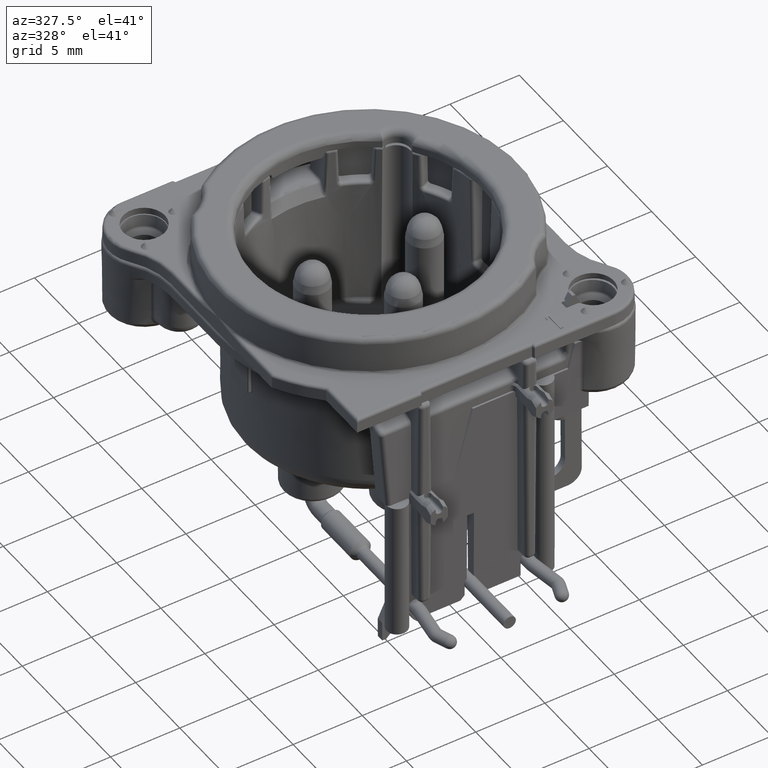
[diagram: clean part render]
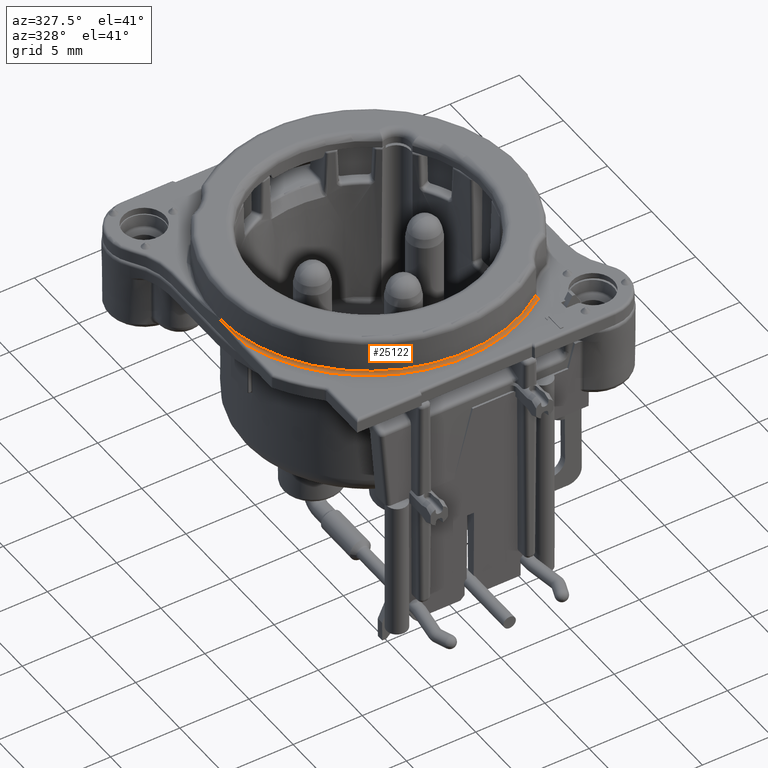
[diagram: same view with one face highlighted and labeled with its STEP entity id]
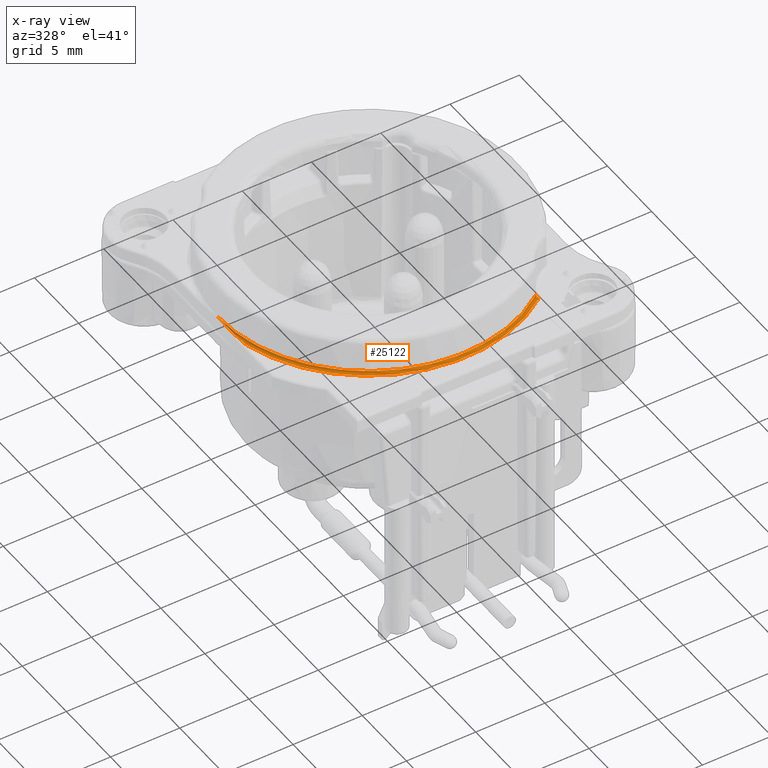
[diagram: x-ray of the same camera — body ghosted, the highlighted face saturated]
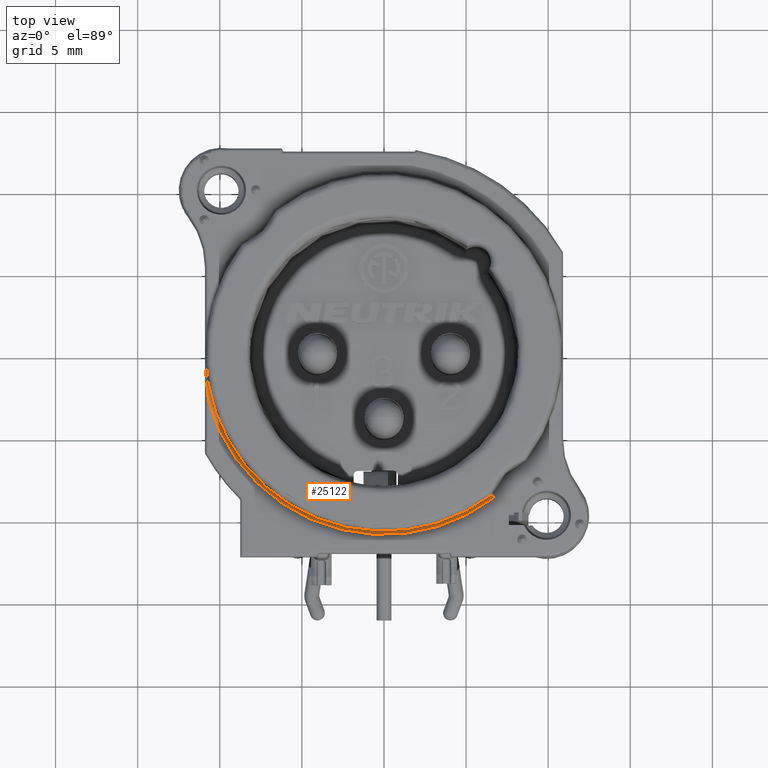
[diagram: same view with one face highlighted and labeled with its STEP entity id]
A machine part, auxiliary view. The second image highlights one B-rep face of the part: STEP entity #25122.
The next image is the same camera in x-ray: the body ghosted, the highlighted face saturated — about 0% of this face is hidden behind the body in this view.
A second angle (top view) of the same face is appended — the face is thin or edge-on in the first view.
In plain terms, the highlighted toroidal blend (fillet) surface has major radius 11.0791 mm and minor (blend) radius 0.2 mm.
Its self-contained STEP definition (entity closure, byte-faithful):
#642=CARTESIAN_POINT('',(-1.068600548245E1,-2.924961140162E0,1.000000064700E0));
#643=CARTESIAN_POINT('',(-1.070233624940E1,-2.801190992725E0,
9.999998862737E-1));
#644=CARTESIAN_POINT('',(-1.073310871526E1,-2.553092128592E0,1.004177684084E0));
#645=CARTESIAN_POINT('',(-1.077420340856E1,-2.169683374487E0,1.020089858522E0));
#646=CARTESIAN_POINT('',(-1.080713870382E1,-1.804063017955E0,1.041832045668E0));
#647=CARTESIAN_POINT('',(-1.083250550299E1,-1.460660750904E0,1.066516713758E0));
#648=CARTESIAN_POINT('',(-1.085063864596E1,-1.151973236574E0,1.091385279577E0));
#649=CARTESIAN_POINT('',(-1.086315445871E1,-8.755764462619E-1,
1.115244687645E0));
#650=CARTESIAN_POINT('',(-1.087140040298E1,-6.264912570035E-1,
1.137700829615E0));
#651=CARTESIAN_POINT('',(-1.087639016812E1,-4.002601785251E-1,
1.158693568547E0));
#652=CARTESIAN_POINT('',(-1.087888032E1,-1.926449113802E-1,1.178144091153E0));
#653=CARTESIAN_POINT('',(-1.087921741755E1,-6.268191075455E-2,
1.190726286617E0));
#654=CARTESIAN_POINT('',(-1.087911237371E1,2.418568043053E-4,1.196648975651E0));
#656=CARTESIAN_POINT('',(0.E0,0.E0,1.196509518713E0));
#657=DIRECTION('',(0.E0,0.E0,1.E0));
#658=DIRECTION('',(-9.999999996466E-1,2.658511813350E-5,0.E0));
#659=AXIS2_PLACEMENT_3D('',#656,#657,#658);
#914=CARTESIAN_POINT('',(0.E0,0.E0,1.E0));
#915=DIRECTION('',(0.E0,0.E0,1.E0));
#916=DIRECTION('',(-9.645206330468E-1,-2.640074779754E-1,0.E0));
#917=AXIS2_PLACEMENT_3D('',#914,#915,#916);
#919=CARTESIAN_POINT('',(6.688599776629E0,-8.832255878179E0,1.000000538344E0));
#14934=CARTESIAN_POINT('',(6.567890363177E0,-8.672828318435E0,
1.196509514306E0));
#14945=CARTESIAN_POINT('',(6.688598665851E0,-8.832254409328E0,1.2E0));
#14946=DIRECTION('',(7.972010756206E-1,6.037138767905E-1,0.E0));
#14947=DIRECTION('',(5.558897293975E-6,-7.340495344038E-6,-9.999999999576E-1));
#14948=AXIS2_PLACEMENT_3D('',#14945,#14946,#14947);
#23335=VERTEX_POINT('',#919);
#23336=VERTEX_POINT('',#14934);
#23355=VERTEX_POINT('',#642);
#23356=VERTEX_POINT('',#654);
#25108=CARTESIAN_POINT('',(0.E0,0.E0,1.2E0));
#25109=DIRECTION('',(0.E0,0.E0,-1.E0));
#25110=DIRECTION('',(-7.077664394356E-1,7.064465069690E-1,0.E0));
#25111=AXIS2_PLACEMENT_3D('',#25108,#25109,#25110);
#25112=TOROIDAL_SURFACE('',#25111,1.107908438769E1,2.E-1);
#25113=ORIENTED_EDGE('',*,*,#25101,.T.);
#25115=ORIENTED_EDGE('',*,*,#25114,.T.);
#25117=ORIENTED_EDGE('',*,*,#25116,.F.);
#25119=ORIENTED_EDGE('',*,*,#25118,.F.);
#25120=EDGE_LOOP('',(#25113,#25115,#25117,#25119));
#25121=FACE_OUTER_BOUND('',#25120,.F.);
#25122=ADVANCED_FACE('',(#25121),#25112,.F.);
#655=B_SPLINE_CURVE_WITH_KNOTS('',3,(#642,#643,#644,#645,#646,#647,#648,#649,
#650,#651,#652,#653,#654),.UNSPECIFIED.,.F.,.F.,(4,1,1,1,1,1,1,1,1,1,4),(0.E0,
1.E-1,2.E-1,3.E-1,4.E-1,5.E-1,6.E-1,7.E-1,8.E-1,9.E-1,1.E0),.UNSPECIFIED.);
#660=CIRCLE('',#659,1.087911484866E1);
#918=CIRCLE('',#917,1.107908438769E1);
#14949=CIRCLE('',#14948,1.999990793568E-1);
#25101=EDGE_CURVE('',#23355,#23356,#655,.T.);
#25114=EDGE_CURVE('',#23356,#23336,#660,.T.);
#25116=EDGE_CURVE('',#23335,#23336,#14949,.T.);
#25118=EDGE_CURVE('',#23355,#23335,#918,.T.);